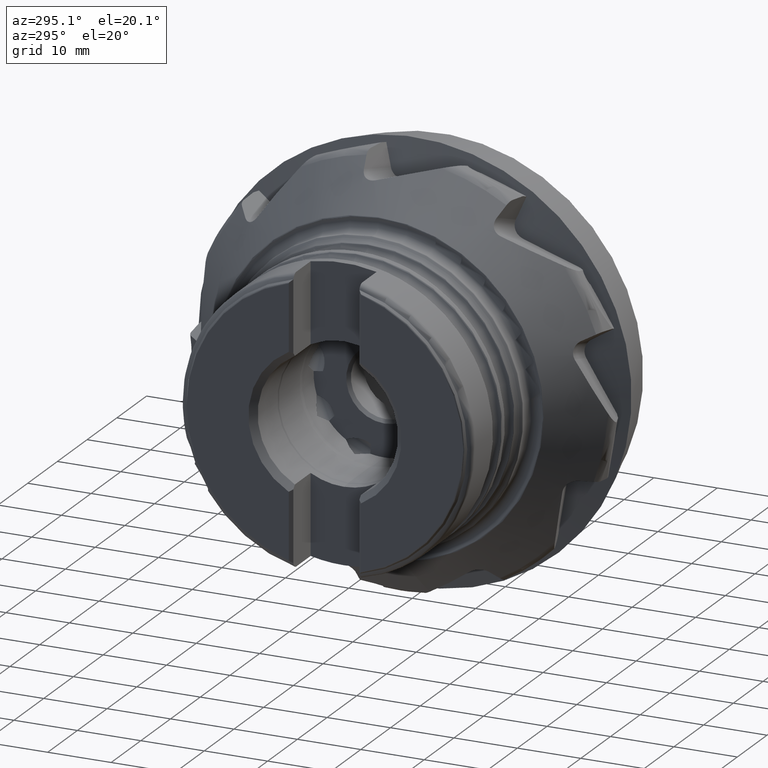
[diagram: clean part render]
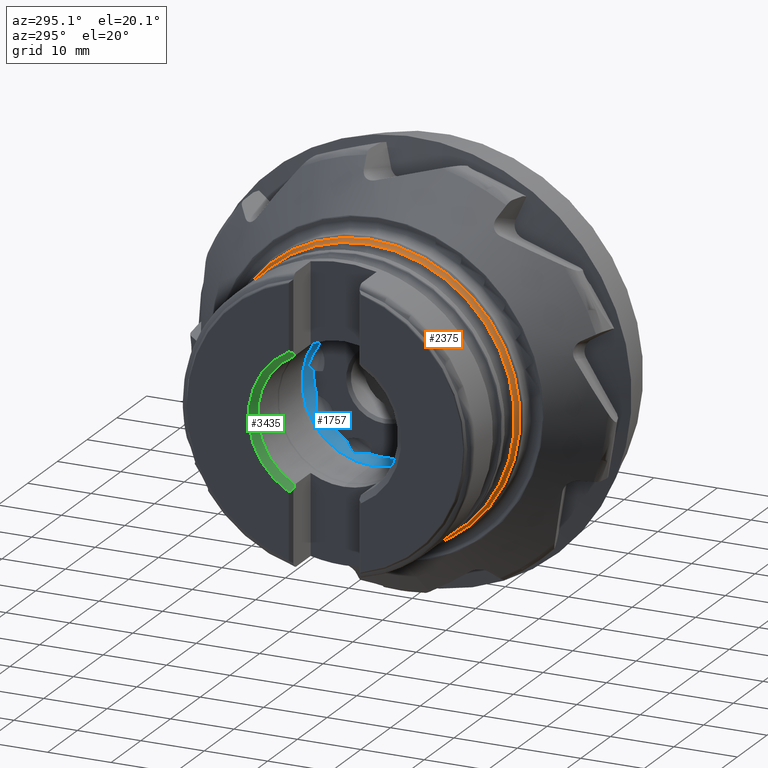
[diagram: same view with three faces highlighted in distinct colors, each labeled with its STEP entity id]
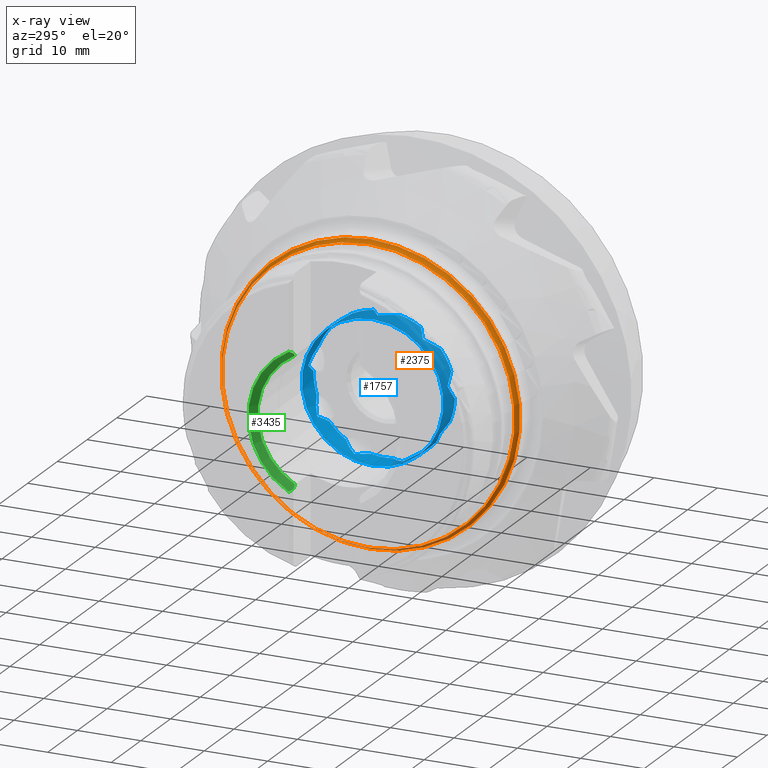
[diagram: x-ray of the same camera — body ghosted, the three highlighted faces saturated]
A machine part, auxiliary view with three faces highlighted in distinct colors.
The next image is the same camera in x-ray (body ghosted, the three faces saturated) — at least one of them is partly hidden behind the body in this view.
Their STEP definitions:

[orange] entity #2375 — the highlighted toroidal blend (fillet) surface has major radius 25 mm and minor (blend) radius 2 mm.
#64 = EDGE_CURVE ( 'NONE', #3539, #3539, #2822, .T. ) ;
#822 = EDGE_CURVE ( 'NONE', #3371, #3371, #5570, .T. ) ;
#1168 = EDGE_LOOP ( 'NONE', ( #2814 ) ) ;
#1699 = FACE_OUTER_BOUND ( 'NONE', #1168, .T. ) ;
#1824 = CARTESIAN_POINT ( 'NONE',  ( -24.83492529995976000, 0.0000000000000000000, 23.08148740338391000 ) ) ;
#1894 = DIRECTION ( 'NONE',  ( 1.000000000000000000, 0.0000000000000000000, 0.0000000000000000000 ) ) ;
#2320 = DIRECTION ( 'NONE',  ( 0.0000000000000000000, 0.0000000000000000000, -1.000000000000000000 ) ) ;
#2324 = AXIS2_PLACEMENT_3D ( 'NONE', #5518, #4993, #2320 ) ;
#2375 = ADVANCED_FACE ( 'NONE', ( #1699, #5794 ), #2941, .F. ) ;
#2814 = ORIENTED_EDGE ( 'NONE', *, *, #822, .T. ) ;
#2822 = CIRCLE ( 'NONE', #4544, 23.56028258347042500 ) ;
#2941 = TOROIDAL_SURFACE ( 'NONE', #2324, 24.99999999999999300, 1.999999999999999600 ) ;
#3174 = DIRECTION ( 'NONE',  ( 1.000000000000000000, -0.0000000000000000000, -0.0000000000000000000 ) ) ;
#3371 = VERTEX_POINT ( 'NONE', #1824 ) ;
#3418 = CARTESIAN_POINT ( 'NONE',  ( -24.01175875275893300, 0.0000000000000000000, -23.56028258347042500 ) ) ;
#3539 = VERTEX_POINT ( 'NONE', #3418 ) ;
#4544 = AXIS2_PLACEMENT_3D ( 'NONE', #6379, #3174, #5226 ) ;
#4757 = EDGE_LOOP ( 'NONE', ( #5284 ) ) ;
#4993 = DIRECTION ( 'NONE',  ( 1.000000000000000000, -0.0000000000000000000, -0.0000000000000000000 ) ) ;
#5101 = CARTESIAN_POINT ( 'NONE',  ( -24.83492529995976000, 0.0000000000000000000, 0.0000000000000000000 ) ) ;
#5226 = DIRECTION ( 'NONE',  ( 0.0000000000000000000, 0.0000000000000000000, -1.000000000000000000 ) ) ;
#5284 = ORIENTED_EDGE ( 'NONE', *, *, #64, .F. ) ;
#5518 = CARTESIAN_POINT ( 'NONE',  ( -25.39999999999999900, 0.0000000000000000000, 0.0000000000000000000 ) ) ;
#5570 = CIRCLE ( 'NONE', #6026, 23.08148740338391000 ) ;
#5628 = DIRECTION ( 'NONE',  ( 0.0000000000000000000, 0.0000000000000000000, 1.000000000000000000 ) ) ;
#5794 = FACE_OUTER_BOUND ( 'NONE', #4757, .T. ) ;
#6026 = AXIS2_PLACEMENT_3D ( 'NONE', #5101, #1894, #5628 ) ;
#6379 = CARTESIAN_POINT ( 'NONE',  ( -24.01175875275893300, 0.0000000000000000000, 0.0000000000000000000 ) ) ;

[blue] entity #1757 — the highlighted cylindrical surface (bore or boss wall) has radius 11.15 mm, axis along (1, -0, -0).
#16 = CARTESIAN_POINT ( 'NONE',  ( -20.18769028846773100, 5.789085310368139200, 9.539599410211137000 ) ) ;
#44 = CARTESIAN_POINT ( 'NONE',  ( -20.82024663613369600, 7.648145852625002100, 8.130392288428891900 ) ) ;
#70 = DIRECTION ( 'NONE',  ( 0.0000000000000000000, 0.0000000000000000000, -1.000000000000000000 ) ) ;
#83 = CARTESIAN_POINT ( 'NONE',  ( -19.60883741501337200, -8.304392471949951100, -7.442773450652876700 ) ) ;
#104 = CARTESIAN_POINT ( 'NONE',  ( -21.51248750534797000, 3.711475271173354500, -10.51415480728094000 ) ) ;
#142 = CARTESIAN_POINT ( 'NONE',  ( -21.51248750534853100, 10.99891208787586500, 1.829325800172735900 ) ) ;
#151 = ORIENTED_EDGE ( 'NONE', *, *, #6853, .F. ) ;
#202 = CARTESIAN_POINT ( 'NONE',  ( -20.36510739813164200, 10.30998050475966800, -4.251476069645451400 ) ) ;
#238 =( BOUNDED_CURVE ( )  B_SPLINE_CURVE ( 3, ( #4594, #1911, #3522, #315 ),
 .UNSPECIFIED., .F., .F. ) 
 B_SPLINE_CURVE_WITH_KNOTS ( ( 4, 4 ),
 ( 4.417486844396221600, 4.558443257935999200 ),
 .UNSPECIFIED. ) 
 CURVE ( )  GEOMETRIC_REPRESENTATION_ITEM ( )  RATIONAL_B_SPLINE_CURVE ( ( 1.000000000000000000, 0.9983449593670785700, 0.9983449593670785700, 1.000000000000000000 ) ) 
 REPRESENTATION_ITEM ( '' )  );
#248 = CARTESIAN_POINT ( 'NONE',  ( -21.51248750534797000, 3.711475271173354500, -10.51415480728094000 ) ) ;
#262 = CARTESIAN_POINT ( 'NONE',  ( -20.11491678478731500, 11.13432208407720800, 0.7901173803933032600 ) ) ;
#291 = VERTEX_POINT ( 'NONE', #6778 ) ;
#315 = CARTESIAN_POINT ( 'NONE',  ( -19.39999999999999900, -10.56555031014362300, 3.562533739324290000 ) ) ;
#349 = DIRECTION ( 'NONE',  ( 0.0000000000000000000, 0.0000000000000000000, -1.000000000000000000 ) ) ;
#377 = ORIENTED_EDGE ( 'NONE', *, *, #5181, .F. ) ;
#388 = B_SPLINE_CURVE_WITH_KNOTS ( 'NONE', 3,
 ( #2158, #5349, #16, #3770, #560, #4315, #1093, #4855 ),
 .UNSPECIFIED., .F., .F.,
 ( 4, 2, 2, 4 ),
 ( 0.01414996420179836200, 0.01582421848169443500, 0.01666134562164246800, 0.01749847276159050000 ),
 .UNSPECIFIED. ) ;
#415 = EDGE_CURVE ( 'NONE', #6962, #2794, #5839, .T. ) ;
#478 = VERTEX_POINT ( 'NONE', #3695 ) ;
#496 = CARTESIAN_POINT ( 'NONE',  ( -19.39999999999999900, 10.65328878568683300, -3.290887121850137200 ) ) ;
#502 = CARTESIAN_POINT ( 'NONE',  ( -19.39999999999999900, 0.0000000000000000000, 0.0000000000000000000 ) ) ;
#513 = CARTESIAN_POINT ( 'NONE',  ( -20.82024663613328700, 0.6327042056740519400, 11.14437522407116200 ) ) ;
#516 = CIRCLE ( 'NONE', #656, 11.14999999999999700 ) ;
#545 = ORIENTED_EDGE ( 'NONE', *, *, #4520, .T. ) ;
#560 = CARTESIAN_POINT ( 'NONE',  ( -20.87604608401688100, 6.526997097384718700, 9.042855333711338900 ) ) ;
#574 = CARTESIAN_POINT ( 'NONE',  ( -19.82038812622600000, -1.766277688267058600, -11.01570914861628300 ) ) ;
#608 = ORIENTED_EDGE ( 'NONE', *, *, #3300, .F. ) ;
#656 = AXIS2_PLACEMENT_3D ( 'NONE', #6781, #3567, #349 ) ;
#659 = CARTESIAN_POINT ( 'NONE',  ( -19.81727428617164600, -8.658437795828243500, 7.035263181139199200 ) ) ;
#665 = CARTESIAN_POINT ( 'NONE',  ( -20.11491678478710900, 2.711568461457509300, -10.82796426968605100 ) ) ;
#682 = EDGE_CURVE ( 'NONE', #3146, #6864, #6030, .T. ) ;
#714 = CARTESIAN_POINT ( 'NONE',  ( -19.39999999999999900, 10.65328878568683300, -3.290887121850137200 ) ) ;
#715 = CARTESIAN_POINT ( 'NONE',  ( -20.11491678478706300, -10.19260424017473800, -4.550629906940434600 ) ) ;
#739 = CARTESIAN_POINT ( 'NONE',  ( -21.20144518609444600, 9.839304694243644200, -5.265865007341939300 ) ) ;
#749 = CARTESIAN_POINT ( 'NONE',  ( -19.39999999999999100, 5.090815335680075800, 9.919984839605577400 ) ) ;
#764 = ORIENTED_EDGE ( 'NONE', *, *, #682, .F. ) ;
#777 = ORIENTED_EDGE ( 'NONE', *, *, #6116, .T. ) ;
#812 = ORIENTED_EDGE ( 'NONE', *, *, #3219, .F. ) ;
#868 = DIRECTION ( 'NONE',  ( 1.000000000000000000, -0.0000000000000000000, -0.0000000000000000000 ) ) ;
#952 = VERTEX_POINT ( 'NONE', #2096 ) ;
#1012 = CIRCLE ( 'NONE', #2774, 11.14999999999999700 ) ;
#1035 = VERTEX_POINT ( 'NONE', #2821 ) ;
#1037 = DIRECTION ( 'NONE',  ( 0.0000000000000000000, 0.0000000000000000000, -1.000000000000000000 ) ) ;
#1068 = ORIENTED_EDGE ( 'NONE', *, *, #415, .T. ) ;
#1079 = EDGE_CURVE ( 'NONE', #4837, #2794, #3194, .T. ) ;
#1093 = CARTESIAN_POINT ( 'NONE',  ( -21.35791285402078500, 7.073196094868571900, 8.622437077200615400 ) ) ;
#1115 = CARTESIAN_POINT ( 'NONE',  ( -21.51248750534844900, 7.249787526840552900, 8.471309273994592100 ) ) ;
#1118 = EDGE_LOOP ( 'NONE', ( #4542 ) ) ;
#1136 = VERTEX_POINT ( 'NONE', #4538 ) ;
#1202 = CARTESIAN_POINT ( 'NONE',  ( -20.18762260284208300, -8.389519894844491800, 7.357587470573578000 ) ) ;
#1279 = CARTESIAN_POINT ( 'NONE',  ( -19.39999999999999900, -10.38363365030741800, -4.062345654446871500 ) ) ;
#1297 = ORIENTED_EDGE ( 'NONE', *, *, #5357, .T. ) ;
#1342 = CARTESIAN_POINT ( 'NONE',  ( -20.18993835557835600, -11.15592914432217600, 0.2465024972436082900 ) ) ;
#1352 = B_SPLINE_CURVE_WITH_KNOTS ( 'NONE', 3,
 ( #6525, #83, #1739, #5461, #2260, #6016, #2795, #6546 ),
 .UNSPECIFIED., .F., .F.,
 ( 4, 2, 2, 4 ),
 ( 0.01379016920641454500, 0.01463416665554901700, 0.01547816410468349000, 0.01716615900295243700 ),
 .UNSPECIFIED. ) ;
#1427 = EDGE_CURVE ( 'NONE', #6388, #1035, #2809, .T. ) ;
#1492 = CARTESIAN_POINT ( 'NONE',  ( -19.39999999999999900, 0.0000000000000000000, 0.0000000000000000000 ) ) ;
#1496 = CARTESIAN_POINT ( 'NONE',  ( -21.51248750534784200, -9.709930253285715900, -5.480853444156964300 ) ) ;
#1506 = AXIS2_PLACEMENT_3D ( 'NONE', #1595, #4240, #5276 ) ;
#1510 = B_SPLINE_CURVE_WITH_KNOTS ( 'NONE', 3,
 ( #1843, #4529, #1342, #5086, #1874, #5614 ),
 .UNSPECIFIED., .F., .F.,
 ( 4, 2, 4 ),
 ( 0.01407631565345111700, 0.01574790468060116200, 0.01741949370775120600 ),
 .UNSPECIFIED. ) ;
#1537 = CARTESIAN_POINT ( 'NONE',  ( -19.39999999999999900, -5.343099404258945000, -9.786408368559307300 ) ) ;
#1550 = CIRCLE ( 'NONE', #2446, 11.14999999999999700 ) ;
#1552 = CIRCLE ( 'NONE', #5321, 11.14999999999999700 ) ;
#1562 = EDGE_CURVE ( 'NONE', #952, #478, #238, .T. ) ;
#1568 = EDGE_CURVE ( 'NONE', #6242, #4138, #1995, .T. ) ;
#1595 = CARTESIAN_POINT ( 'NONE',  ( -19.39999999999999900, 0.0000000000000000000, 0.0000000000000000000 ) ) ;
#1606 = CARTESIAN_POINT ( 'NONE',  ( -20.11491678478707400, 1.155341017455788300, 11.10236915618252400 ) ) ;
#1644 = ORIENTED_EDGE ( 'NONE', *, *, #2591, .T. ) ;
#1650 = CARTESIAN_POINT ( 'NONE',  ( -19.39999999999999900, -5.803728556851597300, 9.520464003313348300 ) ) ;
#1666 = CARTESIAN_POINT ( 'NONE',  ( -20.88011971235168200, -3.033837194673405500, -10.73830836600337300 ) ) ;
#1724 = EDGE_LOOP ( 'NONE', ( #377, #6592, #3709, #3984, #545, #3453, #6175, #1970, #3626, #2439, #2617, #4158, #764, #777, #2371, #151, #1644, #5741, #812, #1297, #608, #4328, #4995, #5554, #6933, #1068, #2017 ) ) ;
#1739 = CARTESIAN_POINT ( 'NONE',  ( -19.80824259035104300, -8.438014810637261200, -7.291487725398975600 ) ) ;
#1752 = CARTESIAN_POINT ( 'NONE',  ( -21.20348865528055500, -7.442517174027817500, 8.315487022331584700 ) ) ;
#1757 = ADVANCED_FACE ( 'NONE', ( #3374, #3046 ), #5723, .F. ) ;
#1770 = CARTESIAN_POINT ( 'NONE',  ( -19.39999999999999900, -5.343099404258945000, -9.786408368559307300 ) ) ;
#1814 = VERTEX_POINT ( 'NONE', #3809 ) ;
#1837 = CARTESIAN_POINT ( 'NONE',  ( -23.33269454164237500, 0.0000000000000000000, -11.14999999999999700 ) ) ;
#1843 = CARTESIAN_POINT ( 'NONE',  ( -19.39999999999944800, -11.13636654409529600, -0.5512170131316309600 ) ) ;
#1847 = CARTESIAN_POINT ( 'NONE',  ( -20.82024663613374900, 11.08493505545991900, 1.312108441785522000 ) ) ;
#1874 = CARTESIAN_POINT ( 'NONE',  ( -21.20196330458156500, -11.04681117947477600, 1.583819984925514800 ) ) ;
#1906 = CARTESIAN_POINT ( 'NONE',  ( -19.39999999999999900, 0.0000000000000000000, 0.0000000000000000000 ) ) ;
#1907 = EDGE_CURVE ( 'NONE', #6335, #1136, #2419, .T. ) ;
#1911 = CARTESIAN_POINT ( 'NONE',  ( -20.82024663613358200, -10.86519919082500400, 2.558292456007442300 ) ) ;
#1919 = CARTESIAN_POINT ( 'NONE',  ( -21.51248750534852800, -7.083698658685856100, 8.610674382005846900 ) ) ;
#1929 = CARTESIAN_POINT ( 'NONE',  ( -19.40000000000000600, 6.045551208414838000, -9.368767826477174800 ) ) ;
#1930 = DIRECTION ( 'NONE',  ( 1.000000000000000000, -0.0000000000000000000, -0.0000000000000000000 ) ) ;
#1937 = VERTEX_POINT ( 'NONE', #2298 ) ;
#1970 = ORIENTED_EDGE ( 'NONE', *, *, #2625, .T. ) ;
#1995 = B_SPLINE_CURVE_WITH_KNOTS ( 'NONE', 3,
 ( #1929, #5112, #5680, #2469, #6211, #3008, #6764, #3542 ),
 .UNSPECIFIED., .F., .F.,
 ( 4, 2, 2, 4 ),
 ( 0.01352380220613009200, 0.01436082080736940900, 0.01519783940860872800, 0.01687187661108735500 ),
 .UNSPECIFIED. ) ;
#2011 = DIRECTION ( 'NONE',  ( 0.0000000000000000000, 0.0000000000000000000, -1.000000000000000000 ) ) ;
#2017 = ORIENTED_EDGE ( 'NONE', *, *, #1079, .F. ) ;
#2044 = VERTEX_POINT ( 'NONE', #4001 ) ;
#2096 = CARTESIAN_POINT ( 'NONE',  ( -21.51248750534829300, -10.96126279801430000, 2.042845533286262100 ) ) ;
#2107 = CARTESIAN_POINT ( 'NONE',  ( -21.51248750534788500, 0.1084068095835163800, 11.14947299039897800 ) ) ;
#2158 = CARTESIAN_POINT ( 'NONE',  ( -19.39999999999999100, 5.090815335680075800, 9.919984839605577400 ) ) ;
#2165 = EDGE_CURVE ( 'NONE', #3632, #5229, #516, .T. ) ;
#2186 = CARTESIAN_POINT ( 'NONE',  ( -21.51248750534829300, -3.915213429190277600, -10.44000018217854000 ) ) ;
#2248 = CARTESIAN_POINT ( 'NONE',  ( -21.20362092218366000, 10.92271422364264800, 2.287469237446913000 ) ) ;
#2260 = CARTESIAN_POINT ( 'NONE',  ( -20.36595924914101400, -8.837510927927068500, -6.802148344339443000 ) ) ;
#2298 = CARTESIAN_POINT ( 'NONE',  ( -19.39999999999999900, -1.390966968092000900, -11.06289794283925000 ) ) ;
#2316 = CARTESIAN_POINT ( 'NONE',  ( -20.88228117290649900, -0.8191053360569832100, 11.12865106889204400 ) ) ;
#2371 = ORIENTED_EDGE ( 'NONE', *, *, #6901, .F. ) ;
#2419 = B_SPLINE_CURVE_WITH_KNOTS ( 'NONE', 3,
 ( #4423, #659, #1202, #4949, #1752, #5478 ),
 .UNSPECIFIED., .F., .F.,
 ( 4, 2, 4 ),
 ( 0.01402774510241653300, 0.01572042574143685300, 0.01741310638045717000 ),
 .UNSPECIFIED. ) ;
#2435 = DIRECTION ( 'NONE',  ( 0.0000000000000000000, 0.0000000000000000000, -1.000000000000000000 ) ) ;
#2439 = ORIENTED_EDGE ( 'NONE', *, *, #1427, .F. ) ;
#2441 = DIRECTION ( 'NONE',  ( 1.000000000000000000, -0.0000000000000000000, -0.0000000000000000000 ) ) ;
#2446 = AXIS2_PLACEMENT_3D ( 'NONE', #1906, #5646, #2435 ) ;
#2448 = CARTESIAN_POINT ( 'NONE',  ( -20.11491678478730800, -6.251422765430852700, 9.247547088532279200 ) ) ;
#2469 = CARTESIAN_POINT ( 'NONE',  ( -20.18341859002816500, 5.357058862859426900, -9.780985321665195200 ) ) ;
#2591 = EDGE_CURVE ( 'NONE', #6052, #5666, #1012, .T. ) ;
#2601 = VERTEX_POINT ( 'NONE', #3594 ) ;
#2617 = ORIENTED_EDGE ( 'NONE', *, *, #5383, .T. ) ;
#2625 = EDGE_CURVE ( 'NONE', #6242, #6244, #6209, .T. ) ;
#2772 = CARTESIAN_POINT ( 'NONE',  ( -19.40000000000000200, 10.27623414201938300, 4.326836241226964800 ) ) ;
#2774 = AXIS2_PLACEMENT_3D ( 'NONE', #6259, #3049, #6796 ) ;
#2785 = VERTEX_POINT ( 'NONE', #1650 ) ;
#2794 = VERTEX_POINT ( 'NONE', #5376 ) ;
#2795 = CARTESIAN_POINT ( 'NONE',  ( -21.20217242294283000, -9.480562749069083100, -5.887203019274249300 ) ) ;
#2809 = B_SPLINE_CURVE_WITH_KNOTS ( 'NONE', 3,
 ( #714, #3930, #6614, #3413, #202, #3949, #739, #4497 ),
 .UNSPECIFIED., .F., .F.,
 ( 4, 2, 2, 4 ),
 ( 0.01421797791919342200, 0.01505321328813213000, 0.01588844865707083800, 0.01755891939494825700 ),
 .UNSPECIFIED. ) ;
#2821 = CARTESIAN_POINT ( 'NONE',  ( -21.51248750534858100, 9.601523443702420800, -5.668619546241593800 ) ) ;
#2846 = CARTESIAN_POINT ( 'NONE',  ( -21.51248750534788500, 0.1084068095835163800, 11.14947299039897800 ) ) ;
#3008 = CARTESIAN_POINT ( 'NONE',  ( -20.88539878118564600, 4.571980917139978100, -10.17913480649003200 ) ) ;
#3046 = FACE_OUTER_BOUND ( 'NONE', #1724, .T. ) ;
#3049 = DIRECTION ( 'NONE',  ( 1.000000000000000000, -0.0000000000000000000, -0.0000000000000000000 ) ) ;
#3057 = CARTESIAN_POINT ( 'NONE',  ( -19.39999999999999900, 8.709911360857951500, -6.961317697533814000 ) ) ;
#3108 = EDGE_CURVE ( 'NONE', #5716, #5716, #4951, .T. ) ;
#3146 = VERTEX_POINT ( 'NONE', #2772 ) ;
#3194 =( BOUNDED_CURVE ( )  B_SPLINE_CURVE ( 3, ( #4498, #3950, #715, #1279 ),
 .UNSPECIFIED., .F., .T. ) 
 B_SPLINE_CURVE_WITH_KNOTS ( ( 4, 4 ),
 ( 4.417486844396252700, 4.558443257935998400 ),
 .UNSPECIFIED. ) 
 CURVE ( )  GEOMETRIC_REPRESENTATION_ITEM ( )  RATIONAL_B_SPLINE_CURVE ( ( 1.000000000000000000, 0.9983449593670792300, 0.9983449593670792300, 1.000000000000000000 ) ) 
 REPRESENTATION_ITEM ( '' )  );
#3216 = AXIS2_PLACEMENT_3D ( 'NONE', #5654, #2441, #6191 ) ;
#3219 = EDGE_CURVE ( 'NONE', #291, #5244, #3412, .T. ) ;
#3278 = DIRECTION ( 'NONE',  ( 1.000000000000000000, -0.0000000000000000000, -0.0000000000000000000 ) ) ;
#3300 = EDGE_CURVE ( 'NONE', #1136, #2785, #4281, .T. ) ;
#3339 = CARTESIAN_POINT ( 'NONE',  ( -19.39999999999999900, 1.673722289449456100, 11.02366335198059300 ) ) ;
#3347 = CARTESIAN_POINT ( 'NONE',  ( -19.39999999999999900, 8.368019875165845900, 7.368768103884757900 ) ) ;
#3374 = FACE_OUTER_BOUND ( 'NONE', #1118, .T. ) ;
#3412 = B_SPLINE_CURVE_WITH_KNOTS ( 'NONE', 3,
 ( #4989, #4455, #5515, #2316, #6055, #2846 ),
 .UNSPECIFIED., .F., .F.,
 ( 4, 2, 4 ),
 ( 0.01392414570767486700, 0.01561602659368210500, 0.01730790747968934500 ),
 .UNSPECIFIED. ) ;
#3413 = CARTESIAN_POINT ( 'NONE',  ( -20.18599697743551100, 10.38973950588147200, -4.052033062279230400 ) ) ;
#3453 = ORIENTED_EDGE ( 'NONE', *, *, #5192, .F. ) ;
#3522 = CARTESIAN_POINT ( 'NONE',  ( -20.11491678478722300, -10.73307635954714300, 3.065694963119968800 ) ) ;
#3542 = CARTESIAN_POINT ( 'NONE',  ( -21.51248750534797000, 3.711475271173354500, -10.51415480728094000 ) ) ;
#3567 = DIRECTION ( 'NONE',  ( 1.000000000000000000, -0.0000000000000000000, -0.0000000000000000000 ) ) ;
#3594 = CARTESIAN_POINT ( 'NONE',  ( -21.51248750534844900, 7.249787526840552900, 8.471309273994592100 ) ) ;
#3613 =( BOUNDED_CURVE ( )  B_SPLINE_CURVE ( 3, ( #1115, #44, #6547, #3347 ),
 .UNSPECIFIED., .F., .F. ) 
 B_SPLINE_CURVE_WITH_KNOTS ( ( 4, 4 ),
 ( 4.417486844396210100, 4.558443257935998400 ),
 .UNSPECIFIED. ) 
 CURVE ( )  GEOMETRIC_REPRESENTATION_ITEM ( )  RATIONAL_B_SPLINE_CURVE ( ( 1.000000000000000000, 0.9983449593670782300, 0.9983449593670782300, 1.000000000000000000 ) ) 
 REPRESENTATION_ITEM ( '' )  );
#3626 = ORIENTED_EDGE ( 'NONE', *, *, #3933, .F. ) ;
#3632 = VERTEX_POINT ( 'NONE', #5729 ) ;
#3643 = CARTESIAN_POINT ( 'NONE',  ( -19.81683548967707200, 10.42178231869817800, 3.981159386567184400 ) ) ;
#3670 = CARTESIAN_POINT ( 'NONE',  ( -19.39999999999999900, -8.885267173927445600, 6.736061701612247700 ) ) ;
#3695 = CARTESIAN_POINT ( 'NONE',  ( -19.39999999999999900, -10.56555031014362300, 3.562533739324290000 ) ) ;
#3709 = ORIENTED_EDGE ( 'NONE', *, *, #6356, .F. ) ;
#3770 = CARTESIAN_POINT ( 'NONE',  ( -20.70824551879195100, 6.341265413876747000, 9.173853844501538300 ) ) ;
#3791 = EDGE_CURVE ( 'NONE', #1937, #4392, #5125, .T. ) ;
#3809 = CARTESIAN_POINT ( 'NONE',  ( -19.39999999999999900, 8.368019875165845900, 7.368768103884757900 ) ) ;
#3853 =( BOUNDED_CURVE ( )  B_SPLINE_CURVE ( 3, ( #104, #4943, #665, #4431 ),
 .UNSPECIFIED., .F., .F. ) 
 B_SPLINE_CURVE_WITH_KNOTS ( ( 4, 4 ),
 ( 4.417486844396243800, 4.558443257935998400 ),
 .UNSPECIFIED. ) 
 CURVE ( )  GEOMETRIC_REPRESENTATION_ITEM ( )  RATIONAL_B_SPLINE_CURVE ( ( 1.000000000000000000, 0.9983449593670791200, 0.9983449593670791200, 1.000000000000000000 ) ) 
 REPRESENTATION_ITEM ( '' )  );
#3884 = CIRCLE ( 'NONE', #3216, 11.14999999999999700 ) ;
#3930 = CARTESIAN_POINT ( 'NONE',  ( -19.60923848349527500, 10.59772060572372400, -3.470772923618154600 ) ) ;
#3933 = EDGE_CURVE ( 'NONE', #1035, #6244, #4113, .T. ) ;
#3937 = AXIS2_PLACEMENT_3D ( 'NONE', #5141, #1930, #5681 ) ;
#3949 = CARTESIAN_POINT ( 'NONE',  ( -20.88265872884442200, 10.04682118660498300, -4.855602039042608500 ) ) ;
#3950 = CARTESIAN_POINT ( 'NONE',  ( -20.82024663613327300, -9.967664156188529700, -5.024249696840636000 ) ) ;
#3951 = CARTESIAN_POINT ( 'NONE',  ( -21.51248750534788500, 0.1084068095835163800, 11.14947299039897800 ) ) ;
#3977 = CARTESIAN_POINT ( 'NONE',  ( -19.39999999999999900, 11.14682796111045700, 0.2659443652459600500 ) ) ;
#3984 = ORIENTED_EDGE ( 'NONE', *, *, #3791, .F. ) ;
#4001 = CARTESIAN_POINT ( 'NONE',  ( -19.39999999999999900, 2.197530434977712900, -10.93130184320909700 ) ) ;
#4020 = CARTESIAN_POINT ( 'NONE',  ( -19.39999999999999900, 11.14682796111045700, 0.2659443652459600500 ) ) ;
#4021 = CARTESIAN_POINT ( 'NONE',  ( -20.82024663613378100, 9.334959950514676300, -6.120125527230307200 ) ) ;
#4058 = CARTESIAN_POINT ( 'NONE',  ( -20.82024663613374200, -6.678786770836270900, 8.943781136436165000 ) ) ;
#4065 = CIRCLE ( 'NONE', #5867, 11.14999999999999700 ) ;
#4101 = CARTESIAN_POINT ( 'NONE',  ( -19.39999999999999900, 0.0000000000000000000, 0.0000000000000000000 ) ) ;
#4113 =( BOUNDED_CURVE ( )  B_SPLINE_CURVE ( 3, ( #5618, #4021, #5346, #4284 ),
 .UNSPECIFIED., .F., .F. ) 
 B_SPLINE_CURVE_WITH_KNOTS ( ( 4, 4 ),
 ( 4.417486844396202100, 4.558443257935999200 ),
 .UNSPECIFIED. ) 
 CURVE ( )  GEOMETRIC_REPRESENTATION_ITEM ( )  RATIONAL_B_SPLINE_CURVE ( ( 1.000000000000000000, 0.9983449593670779000, 0.9983449593670779000, 1.000000000000000000 ) ) 
 REPRESENTATION_ITEM ( '' )  );
#4138 = VERTEX_POINT ( 'NONE', #248 ) ;
#4148 = VERTEX_POINT ( 'NONE', #3977 ) ;
#4158 = ORIENTED_EDGE ( 'NONE', *, *, #6086, .F. ) ;
#4240 = DIRECTION ( 'NONE',  ( 1.000000000000000000, -0.0000000000000000000, -0.0000000000000000000 ) ) ;
#4268 = DIRECTION ( 'NONE',  ( 1.000000000000000000, -0.0000000000000000000, -0.0000000000000000000 ) ) ;
#4281 =( BOUNDED_CURVE ( )  B_SPLINE_CURVE ( 3, ( #1919, #4058, #2448, #6196 ),
 .UNSPECIFIED., .F., .F. ) 
 B_SPLINE_CURVE_WITH_KNOTS ( ( 4, 4 ),
 ( 4.417486844396205600, 4.558443257935999200 ),
 .UNSPECIFIED. ) 
 CURVE ( )  GEOMETRIC_REPRESENTATION_ITEM ( )  RATIONAL_B_SPLINE_CURVE ( ( 1.000000000000000000, 0.9983449593670781200, 0.9983449593670781200, 1.000000000000000000 ) ) 
 REPRESENTATION_ITEM ( '' )  );
#4284 = CARTESIAN_POINT ( 'NONE',  ( -19.39999999999999900, 8.709911360857951500, -6.961317697533814000 ) ) ;
#4299 = CARTESIAN_POINT ( 'NONE',  ( -21.51248750534829300, -3.915213429190277600, -10.44000018217854000 ) ) ;
#4315 = CARTESIAN_POINT ( 'NONE',  ( -21.20065136549385800, 6.892723481089081600, 8.767285024963166900 ) ) ;
#4328 = ORIENTED_EDGE ( 'NONE', *, *, #1907, .F. ) ;
#4339 = CARTESIAN_POINT ( 'NONE',  ( -19.39999999999999900, -1.390966968092000900, -11.06289794283925000 ) ) ;
#4388 = EDGE_CURVE ( 'NONE', #5244, #5666, #5036, .T. ) ;
#4392 = VERTEX_POINT ( 'NONE', #4299 ) ;
#4423 = CARTESIAN_POINT ( 'NONE',  ( -19.39999999999999900, -8.885267173927445600, 6.736061701612247700 ) ) ;
#4431 = CARTESIAN_POINT ( 'NONE',  ( -19.39999999999999900, 2.197530434977712900, -10.93130184320909700 ) ) ;
#4455 = CARTESIAN_POINT ( 'NONE',  ( -19.81744945634544700, -2.110414475017807800, 10.95489581057460700 ) ) ;
#4497 = CARTESIAN_POINT ( 'NONE',  ( -21.51248750534858100, 9.601523443702420800, -5.668619546241593800 ) ) ;
#4498 = CARTESIAN_POINT ( 'NONE',  ( -21.51248750534784200, -9.709930253285715900, -5.480853444156964300 ) ) ;
#4520 = EDGE_CURVE ( 'NONE', #1937, #2044, #1552, .T. ) ;
#4525 = AXIS2_PLACEMENT_3D ( 'NONE', #6363, #5274, #5772 ) ;
#4529 = CARTESIAN_POINT ( 'NONE',  ( -19.82054706854154000, -11.15507374653994800, -0.1732710163988380200 ) ) ;
#4538 = CARTESIAN_POINT ( 'NONE',  ( -21.51248750534852800, -7.083698658685856100, 8.610674382005846900 ) ) ;
#4542 = ORIENTED_EDGE ( 'NONE', *, *, #3108, .F. ) ;
#4594 = CARTESIAN_POINT ( 'NONE',  ( -21.51248750534829300, -10.96126279801430000, 2.042845533286262100 ) ) ;
#4597 = AXIS2_PLACEMENT_3D ( 'NONE', #1492, #5220, #2011 ) ;
#4625 = DIRECTION ( 'NONE',  ( 0.0000000000000000000, 0.0000000000000000000, -1.000000000000000000 ) ) ;
#4691 = AXIS2_PLACEMENT_3D ( 'NONE', #6490, #3278, #70 ) ;
#4722 = CARTESIAN_POINT ( 'NONE',  ( -21.51248750534829300, -3.915213429190277600, -10.44000018217854000 ) ) ;
#4744 = CARTESIAN_POINT ( 'NONE',  ( -20.11491678478722300, -4.882899318646497700, -10.03766446892555000 ) ) ;
#4837 = VERTEX_POINT ( 'NONE', #1496 ) ;
#4855 = CARTESIAN_POINT ( 'NONE',  ( -21.51248750534844900, 7.249787526840552900, 8.471309273994592100 ) ) ;
#4863 = CARTESIAN_POINT ( 'NONE',  ( -20.18970061016401400, -2.179696123111539900, -10.94369039666484500 ) ) ;
#4930 = CARTESIAN_POINT ( 'NONE',  ( -20.18779967411816800, 10.56670278011579500, 3.586658598038148700 ) ) ;
#4943 = CARTESIAN_POINT ( 'NONE',  ( -20.82024663613335800, 3.217053338199724200, -10.68868474443637200 ) ) ;
#4949 = CARTESIAN_POINT ( 'NONE',  ( -20.88281028490832400, -7.780338428162381500, 7.999029403395916800 ) ) ;
#4951 = CIRCLE ( 'NONE', #4691, 11.14999999999999700 ) ;
#4989 = CARTESIAN_POINT ( 'NONE',  ( -19.39999999999999900, -2.476652544334189800, 10.87146228318173000 ) ) ;
#4995 = ORIENTED_EDGE ( 'NONE', *, *, #6179, .T. ) ;
#5036 =( BOUNDED_CURVE ( )  B_SPLINE_CURVE ( 3, ( #2107, #513, #1606, #5339 ),
 .UNSPECIFIED., .F., .F. ) 
 B_SPLINE_CURVE_WITH_KNOTS ( ( 4, 4 ),
 ( 4.417486844396250900, 4.558443257935999200 ),
 .UNSPECIFIED. ) 
 CURVE ( )  GEOMETRIC_REPRESENTATION_ITEM ( )  RATIONAL_B_SPLINE_CURVE ( ( 1.000000000000000000, 0.9983449593670791200, 0.9983449593670791200, 1.000000000000000000 ) ) 
 REPRESENTATION_ITEM ( '' )  );
#5086 = CARTESIAN_POINT ( 'NONE',  ( -20.88046011895059800, -11.10194671367567700, 1.123520236128434900 ) ) ;
#5112 = CARTESIAN_POINT ( 'NONE',  ( -19.60825140405437800, 5.888101435970406200, -9.470368237512659000 ) ) ;
#5125 = B_SPLINE_CURVE_WITH_KNOTS ( 'NONE', 3,
 ( #4339, #574, #4863, #1666, #5395, #2186 ),
 .UNSPECIFIED., .F., .F.,
 ( 4, 2, 4 ),
 ( 0.0000000000000000000, 0.001675169497609099800, 0.003350338995218199500 ),
 .UNSPECIFIED. ) ;
#5141 = CARTESIAN_POINT ( 'NONE',  ( -19.39999999999999900, 0.0000000000000000000, 0.0000000000000000000 ) ) ;
#5181 = EDGE_CURVE ( 'NONE', #3632, #4837, #1352, .T. ) ;
#5192 = EDGE_CURVE ( 'NONE', #4138, #2044, #3853, .T. ) ;
#5220 = DIRECTION ( 'NONE',  ( 1.000000000000000000, -0.0000000000000000000, -0.0000000000000000000 ) ) ;
#5229 = VERTEX_POINT ( 'NONE', #1770 ) ;
#5244 = VERTEX_POINT ( 'NONE', #3951 ) ;
#5274 = DIRECTION ( 'NONE',  ( 1.000000000000000000, -0.0000000000000000000, -0.0000000000000000000 ) ) ;
#5276 = DIRECTION ( 'NONE',  ( 0.0000000000000000000, 0.0000000000000000000, -1.000000000000000000 ) ) ;
#5321 = AXIS2_PLACEMENT_3D ( 'NONE', #502, #4268, #1037 ) ;
#5339 = CARTESIAN_POINT ( 'NONE',  ( -19.39999999999999900, 1.673722289449456100, 11.02366335198059300 ) ) ;
#5346 = CARTESIAN_POINT ( 'NONE',  ( -20.11491678478732200, 9.037263222719058600, -6.551739249242032800 ) ) ;
#5349 = CARTESIAN_POINT ( 'NONE',  ( -19.81766565549798600, 5.425173087086935000, 9.748396516035798600 ) ) ;
#5357 = EDGE_CURVE ( 'NONE', #291, #2785, #3884, .T. ) ;
#5376 = CARTESIAN_POINT ( 'NONE',  ( -19.39999999999999900, -10.38363365030741800, -4.062345654446871500 ) ) ;
#5383 = EDGE_CURVE ( 'NONE', #6388, #4148, #6394, .T. ) ;
#5395 = CARTESIAN_POINT ( 'NONE',  ( -21.20089419179257100, -3.476511594011603800, -10.60452233606068400 ) ) ;
#5461 = CARTESIAN_POINT ( 'NONE',  ( -20.18659974417982300, -8.704460473520056100, -6.971244871549462400 ) ) ;
#5478 = CARTESIAN_POINT ( 'NONE',  ( -21.51248750534852800, -7.083698658685856100, 8.610674382005846900 ) ) ;
#5513 = CARTESIAN_POINT ( 'NONE',  ( -19.39999999999944800, -11.13636654409529600, -0.5512170131316309600 ) ) ;
#5515 = CARTESIAN_POINT ( 'NONE',  ( -20.18763630284769000, -1.697333372905879900, 11.02891053485923600 ) ) ;
#5554 = ORIENTED_EDGE ( 'NONE', *, *, #1562, .F. ) ;
#5598 = CARTESIAN_POINT ( 'NONE',  ( -21.51248750534853100, 10.99891208787586500, 1.829325800172735900 ) ) ;
#5614 = CARTESIAN_POINT ( 'NONE',  ( -21.51248750534829300, -10.96126279801430000, 2.042845533286262100 ) ) ;
#5618 = CARTESIAN_POINT ( 'NONE',  ( -21.51248750534858100, 9.601523443702420800, -5.668619546241593800 ) ) ;
#5646 = DIRECTION ( 'NONE',  ( 1.000000000000000000, -0.0000000000000000000, -0.0000000000000000000 ) ) ;
#5654 = CARTESIAN_POINT ( 'NONE',  ( -19.39999999999999900, 0.0000000000000000000, 0.0000000000000000000 ) ) ;
#5666 = VERTEX_POINT ( 'NONE', #3339 ) ;
#5674 =( BOUNDED_CURVE ( )  B_SPLINE_CURVE ( 3, ( #4722, #6857, #4744, #1537 ),
 .UNSPECIFIED., .F., .F. ) 
 B_SPLINE_CURVE_WITH_KNOTS ( ( 4, 4 ),
 ( 4.417486844396221600, 4.558443257935999200 ),
 .UNSPECIFIED. ) 
 CURVE ( )  GEOMETRIC_REPRESENTATION_ITEM ( )  RATIONAL_B_SPLINE_CURVE ( ( 1.000000000000000000, 0.9983449593670785700, 0.9983449593670785700, 1.000000000000000000 ) ) 
 REPRESENTATION_ITEM ( '' )  );
#5680 = CARTESIAN_POINT ( 'NONE',  ( -19.80529676660239200, 5.718084337997519900, -9.574406771509044800 ) ) ;
#5681 = DIRECTION ( 'NONE',  ( 0.0000000000000000000, 0.0000000000000000000, -1.000000000000000000 ) ) ;
#5698 = CARTESIAN_POINT ( 'NONE',  ( -19.40000000000000200, 10.27623414201938300, 4.326836241226964800 ) ) ;
#5716 = VERTEX_POINT ( 'NONE', #1837 ) ;
#5723 = CYLINDRICAL_SURFACE ( 'NONE', #4525, 11.14999999999999700 ) ;
#5729 = CARTESIAN_POINT ( 'NONE',  ( -19.39999999999999900, -8.176636241352621700, -7.580575161331678300 ) ) ;
#5741 = ORIENTED_EDGE ( 'NONE', *, *, #4388, .F. ) ;
#5772 = DIRECTION ( 'NONE',  ( 0.0000000000000000000, 0.0000000000000000000, -1.000000000000000000 ) ) ;
#5808 = EDGE_CURVE ( 'NONE', #6962, #952, #1510, .T. ) ;
#5839 = CIRCLE ( 'NONE', #1506, 11.14999999999999700 ) ;
#5867 = AXIS2_PLACEMENT_3D ( 'NONE', #4101, #868, #4625 ) ;
#5923 = CARTESIAN_POINT ( 'NONE',  ( -21.51248750534853100, 10.99891208787586500, 1.829325800172735900 ) ) ;
#6016 = CARTESIAN_POINT ( 'NONE',  ( -20.88379500436820600, -9.229365490903317600, -6.271730114876113800 ) ) ;
#6030 = B_SPLINE_CURVE_WITH_KNOTS ( 'NONE', 3,
 ( #5698, #3643, #4930, #6550, #2248, #142 ),
 .UNSPECIFIED., .F., .F.,
 ( 4, 2, 4 ),
 ( 0.01367168861131245300, 0.01534856364881521600, 0.01702543868631797900 ),
 .UNSPECIFIED. ) ;
#6052 = VERTEX_POINT ( 'NONE', #749 ) ;
#6055 = CARTESIAN_POINT ( 'NONE',  ( -21.20342368179438700, -0.3563045922898019900, 11.15399139951995400 ) ) ;
#6086 = EDGE_CURVE ( 'NONE', #6864, #4148, #6184, .T. ) ;
#6116 = EDGE_CURVE ( 'NONE', #3146, #1814, #1550, .T. ) ;
#6175 = ORIENTED_EDGE ( 'NONE', *, *, #1568, .F. ) ;
#6179 = EDGE_CURVE ( 'NONE', #6335, #478, #4065, .T. ) ;
#6184 =( BOUNDED_CURVE ( )  B_SPLINE_CURVE ( 3, ( #5598, #1847, #262, #4020 ),
 .UNSPECIFIED., .F., .T. ) 
 B_SPLINE_CURVE_WITH_KNOTS ( ( 4, 4 ),
 ( 4.417486844396204800, 4.558443257935998400 ),
 .UNSPECIFIED. ) 
 CURVE ( )  GEOMETRIC_REPRESENTATION_ITEM ( )  RATIONAL_B_SPLINE_CURVE ( ( 1.000000000000000000, 0.9983449593670781200, 0.9983449593670781200, 1.000000000000000000 ) ) 
 REPRESENTATION_ITEM ( '' )  );
#6191 = DIRECTION ( 'NONE',  ( 0.0000000000000000000, 0.0000000000000000000, -1.000000000000000000 ) ) ;
#6196 = CARTESIAN_POINT ( 'NONE',  ( -19.39999999999999900, -5.803728556851597300, 9.520464003313348300 ) ) ;
#6209 = CIRCLE ( 'NONE', #4597, 11.14999999999999700 ) ;
#6211 = CARTESIAN_POINT ( 'NONE',  ( -20.36485397487371800, 5.165439163851980100, -9.883803011664655400 ) ) ;
#6242 = VERTEX_POINT ( 'NONE', #6267 ) ;
#6244 = VERTEX_POINT ( 'NONE', #3057 ) ;
#6259 = CARTESIAN_POINT ( 'NONE',  ( -19.39999999999999900, 0.0000000000000000000, 0.0000000000000000000 ) ) ;
#6267 = CARTESIAN_POINT ( 'NONE',  ( -19.40000000000000600, 6.045551208414838000, -9.368767826477174800 ) ) ;
#6335 = VERTEX_POINT ( 'NONE', #3670 ) ;
#6356 = EDGE_CURVE ( 'NONE', #4392, #5229, #5674, .T. ) ;
#6363 = CARTESIAN_POINT ( 'NONE',  ( 0.0000000000000000000, 0.0000000000000000000, 0.0000000000000000000 ) ) ;
#6388 = VERTEX_POINT ( 'NONE', #496 ) ;
#6394 = CIRCLE ( 'NONE', #3937, 11.14999999999999700 ) ;
#6490 = CARTESIAN_POINT ( 'NONE',  ( -23.33269454164237500, 0.0000000000000000000, 0.0000000000000000000 ) ) ;
#6525 = CARTESIAN_POINT ( 'NONE',  ( -19.39999999999999900, -8.176636241352621700, -7.580575161331678300 ) ) ;
#6546 = CARTESIAN_POINT ( 'NONE',  ( -21.51248750534784200, -9.709930253285715900, -5.480853444156964300 ) ) ;
#6547 = CARTESIAN_POINT ( 'NONE',  ( -20.11491678478728300, 8.021507898089463900, 7.762269306566045300 ) ) ;
#6550 = CARTESIAN_POINT ( 'NONE',  ( -20.88491026657488400, 10.81826849822258800, 2.735762095386332900 ) ) ;
#6592 = ORIENTED_EDGE ( 'NONE', *, *, #2165, .T. ) ;
#6614 = CARTESIAN_POINT ( 'NONE',  ( -19.80862383429287000, 10.53347126755369700, -3.662190873438871700 ) ) ;
#6764 = CARTESIAN_POINT ( 'NONE',  ( -21.20355257905928100, 4.149523765780321200, -10.35952457925891300 ) ) ;
#6778 = CARTESIAN_POINT ( 'NONE',  ( -19.39999999999999900, -2.476652544334189800, 10.87146228318173000 ) ) ;
#6781 = CARTESIAN_POINT ( 'NONE',  ( -19.39999999999999900, 0.0000000000000000000, 0.0000000000000000000 ) ) ;
#6796 = DIRECTION ( 'NONE',  ( 0.0000000000000000000, 0.0000000000000000000, -1.000000000000000000 ) ) ;
#6853 = EDGE_CURVE ( 'NONE', #6052, #2601, #388, .T. ) ;
#6857 = CARTESIAN_POINT ( 'NONE',  ( -20.82024663613358200, -4.406148284623844400, -10.25588957822164100 ) ) ;
#6864 = VERTEX_POINT ( 'NONE', #5923 ) ;
#6901 = EDGE_CURVE ( 'NONE', #2601, #1814, #3613, .T. ) ;
#6933 = ORIENTED_EDGE ( 'NONE', *, *, #5808, .F. ) ;
#6962 = VERTEX_POINT ( 'NONE', #5513 ) ;

[green] entity #3435 — the highlighted conical surface has half-angle 45 deg.
#73 = EDGE_CURVE ( 'NONE', #1280, #4421, #105, .T. ) ;
#105 = B_SPLINE_CURVE_WITH_KNOTS ( 'NONE', 3,
 ( #420, #3190, #6856, #3149 ),
 .UNSPECIFIED., .F., .F.,
 ( 4, 4 ),
 ( 0.04520218451188445800, 0.04593468882359255000 ),
 .UNSPECIFIED. ) ;
#147 = CARTESIAN_POINT ( 'NONE',  ( -38.39999999999999100, 0.0000000000000000000, 0.0000000000000000000 ) ) ;
#213 = EDGE_CURVE ( 'NONE', #6585, #4421, #4959, .T. ) ;
#298 = CONICAL_SURFACE ( 'NONE', #5024, 12.07500000000000300, 0.7853981633974482800 ) ;
#354 = VERTEX_POINT ( 'NONE', #4241 ) ;
#420 = CARTESIAN_POINT ( 'NONE',  ( -38.39999999999999100, 5.199999999999994800, -9.778324242936514900 ) ) ;
#523 = AXIS2_PLACEMENT_3D ( 'NONE', #147, #3895, #668 ) ;
#578 = CARTESIAN_POINT ( 'NONE',  ( -38.39999999999999100, 5.199999999999994800, -9.778324242936514900 ) ) ;
#621 = CARTESIAN_POINT ( 'NONE',  ( -39.39999999999999900, 5.699999999999983300, 10.64498121181997400 ) ) ;
#668 = DIRECTION ( 'NONE',  ( 0.0000000000000000000, 0.0000000000000000000, 1.000000000000000000 ) ) ;
#1029 = EDGE_LOOP ( 'NONE', ( #2650, #1575, #5962, #6131, #1574, #3388 ) ) ;
#1280 = VERTEX_POINT ( 'NONE', #578 ) ;
#1329 = CARTESIAN_POINT ( 'NONE',  ( -39.06628380536992800, 5.366283805369916700, -10.44371827741977500 ) ) ;
#1445 = CARTESIAN_POINT ( 'NONE',  ( -38.90000000000827600, 5.199999999999994800, 10.34121003559023900 ) ) ;
#1565 = VERTEX_POINT ( 'NONE', #5652 ) ;
#1574 = ORIENTED_EDGE ( 'NONE', *, *, #73, .F. ) ;
#1575 = ORIENTED_EDGE ( 'NONE', *, *, #5144, .T. ) ;
#1580 = CARTESIAN_POINT ( 'NONE',  ( -39.39999999999999900, 0.0000000000000000000, 0.0000000000000000000 ) ) ;
#1689 = CARTESIAN_POINT ( 'NONE',  ( -38.90000000000827600, 5.199999999999994800, 10.34121003559023900 ) ) ;
#2139 = EDGE_CURVE ( 'NONE', #6585, #354, #6896, .T. ) ;
#2217 = CARTESIAN_POINT ( 'NONE',  ( -39.06628380536852100, 5.366283805368508000, 10.44371827743562200 ) ) ;
#2341 = EDGE_CURVE ( 'NONE', #5217, #1280, #4547, .T. ) ;
#2463 = DIRECTION ( 'NONE',  ( 1.000000000000000000, -0.0000000000000000000, -0.0000000000000000000 ) ) ;
#2514 = CARTESIAN_POINT ( 'NONE',  ( -39.23296425372738800, 5.532964253727375800, -10.54494788519413900 ) ) ;
#2650 = ORIENTED_EDGE ( 'NONE', *, *, #4212, .F. ) ;
#2880 = CARTESIAN_POINT ( 'NONE',  ( -39.39999999999999900, 5.699999999999983300, -10.64498121181997400 ) ) ;
#3059 = CARTESIAN_POINT ( 'NONE',  ( -38.56610274583097500, 5.199999999999994800, 9.966453401305033200 ) ) ;
#3149 = CARTESIAN_POINT ( 'NONE',  ( -38.89999999999992000, 5.199999999999994800, -10.34121003558086500 ) ) ;
#3184 = DIRECTION ( 'NONE',  ( -1.000000000000000000, -0.0000000000000000000, -0.0000000000000000000 ) ) ;
#3190 = CARTESIAN_POINT ( 'NONE',  ( -38.56608412088072400, 5.199999999999994800, -9.966432306553112900 ) ) ;
#3345 = CARTESIAN_POINT ( 'NONE',  ( -38.39999999999999100, 5.199999999999994800, 9.778324242936534500 ) ) ;
#3388 = ORIENTED_EDGE ( 'NONE', *, *, #2341, .F. ) ;
#3435 = ADVANCED_FACE ( 'NONE', ( #4751 ), #298, .F. ) ;
#3845 = CARTESIAN_POINT ( 'NONE',  ( -39.23296425372883100, 5.532964253728816400, 10.54494788519500200 ) ) ;
#3895 = DIRECTION ( 'NONE',  ( -1.000000000000000000, -0.0000000000000000000, -0.0000000000000000000 ) ) ;
#4212 = EDGE_CURVE ( 'NONE', #1565, #5217, #5543, .T. ) ;
#4241 = CARTESIAN_POINT ( 'NONE',  ( -39.39999999999999900, 5.699999999999983300, 10.64498121181997400 ) ) ;
#4421 = VERTEX_POINT ( 'NONE', #4843 ) ;
#4547 = CIRCLE ( 'NONE', #523, 11.07499999999999400 ) ;
#4751 = FACE_OUTER_BOUND ( 'NONE', #1029, .T. ) ;
#4779 = DIRECTION ( 'NONE',  ( 0.0000000000000000000, 0.0000000000000000000, 1.000000000000000000 ) ) ;
#4843 = CARTESIAN_POINT ( 'NONE',  ( -38.89999999999992000, 5.199999999999994800, -10.34121003558086500 ) ) ;
#4959 = B_SPLINE_CURVE_WITH_KNOTS ( 'NONE', 3,
 ( #5872, #2514, #1329, #6200 ),
 .UNSPECIFIED., .F., .F.,
 ( 4, 4 ),
 ( 0.0000000000000000000, 0.0007695953011250494600 ),
 .UNSPECIFIED. ) ;
#5024 = AXIS2_PLACEMENT_3D ( 'NONE', #1580, #3184, #4779 ) ;
#5144 = EDGE_CURVE ( 'NONE', #1565, #354, #5180, .T. ) ;
#5180 = B_SPLINE_CURVE_WITH_KNOTS ( 'NONE', 3,
 ( #1689, #2217, #3845, #621 ),
 .UNSPECIFIED., .F., .F.,
 ( 4, 4 ),
 ( 2.459446382805765300E-015, 0.0007695953011183831400 ),
 .UNSPECIFIED. ) ;
#5217 = VERTEX_POINT ( 'NONE', #3345 ) ;
#5449 = AXIS2_PLACEMENT_3D ( 'NONE', #5675, #2463, #6204 ) ;
#5543 = B_SPLINE_CURVE_WITH_KNOTS ( 'NONE', 3,
 ( #1445, #6269, #3059, #6804 ),
 .UNSPECIFIED., .F., .F.,
 ( 4, 4 ),
 ( 0.02171798261836763500, 0.02247087062061111800 ),
 .UNSPECIFIED. ) ;
#5652 = CARTESIAN_POINT ( 'NONE',  ( -38.90000000000827600, 5.199999999999994800, 10.34121003559023900 ) ) ;
#5675 = CARTESIAN_POINT ( 'NONE',  ( -39.39999999999999900, 0.0000000000000000000, 0.0000000000000000000 ) ) ;
#5872 = CARTESIAN_POINT ( 'NONE',  ( -39.39999999999999900, 5.699999999999983300, -10.64498121181997400 ) ) ;
#5962 = ORIENTED_EDGE ( 'NONE', *, *, #2139, .F. ) ;
#6131 = ORIENTED_EDGE ( 'NONE', *, *, #213, .T. ) ;
#6200 = CARTESIAN_POINT ( 'NONE',  ( -38.89999999999992000, 5.199999999999994800, -10.34121003558086500 ) ) ;
#6204 = DIRECTION ( 'NONE',  ( 0.0000000000000000000, 0.0000000000000000000, 1.000000000000000000 ) ) ;
#6269 = CARTESIAN_POINT ( 'NONE',  ( -38.73279657403814700, 5.199999999999994800, 10.15405788908658400 ) ) ;
#6585 = VERTEX_POINT ( 'NONE', #2880 ) ;
#6804 = CARTESIAN_POINT ( 'NONE',  ( -38.39999999999999100, 5.199999999999994800, 9.778324242936534500 ) ) ;
#6856 = CARTESIAN_POINT ( 'NONE',  ( -38.73277872478512100, 5.199999999999994800, -10.15403791027332400 ) ) ;
#6896 = CIRCLE ( 'NONE', #5449, 12.07500000000000300 ) ;